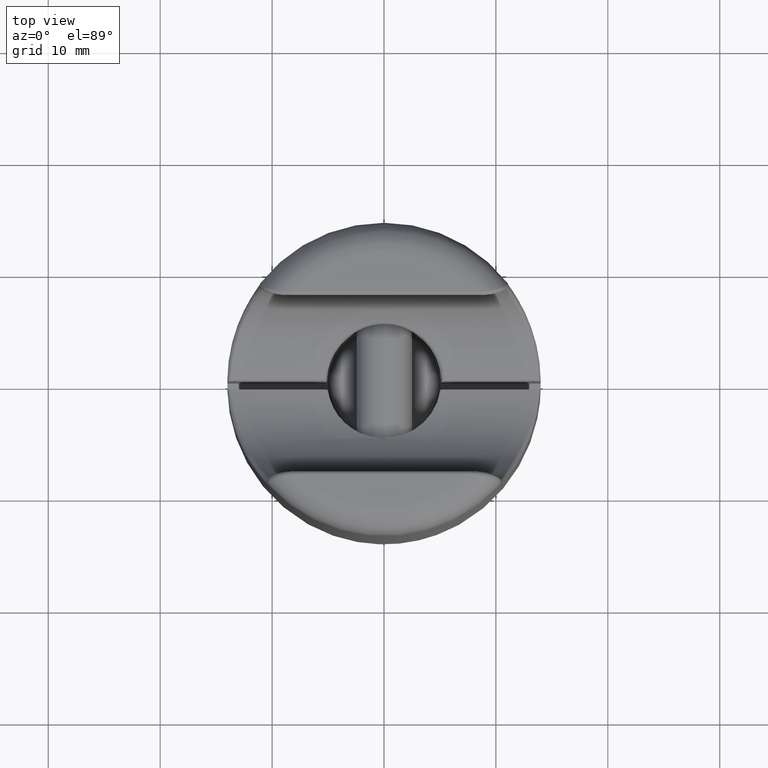
[diagram: clean part render]
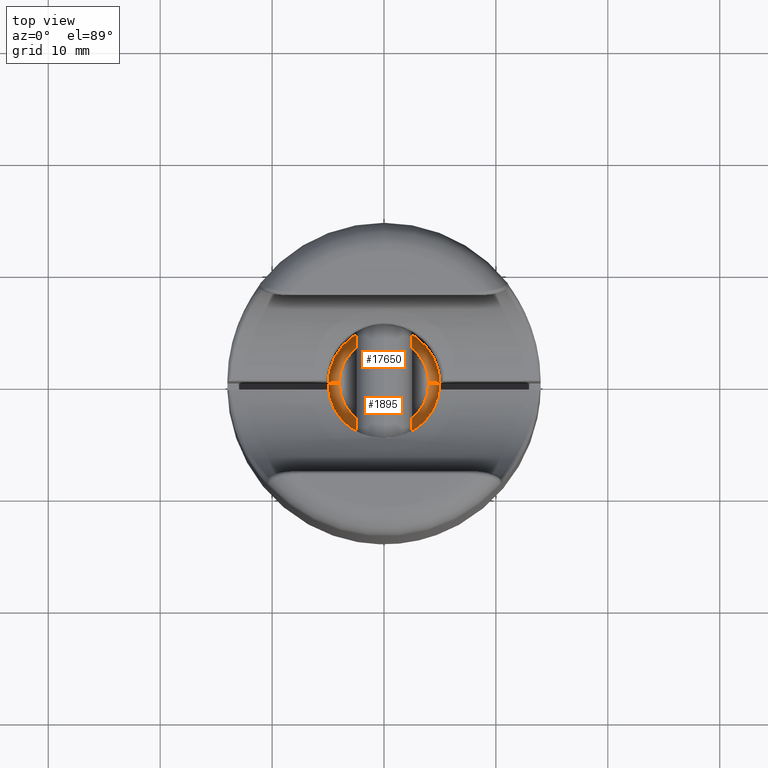
[diagram: same view with one multi-face feature highlighted, each face labeled with its STEP entity id]
A machine part, top view. The highlighted faces form ONE feature: a constant-radius fillet chain: 2 tangent blend faces with common blend radius 1 mm. The faces share edges in the B-rep.
Their STEP definitions:
[1] entity #1895 (Torus):
#184 = CARTESIAN_POINT ( 'NONE',  ( 0.000000000000000000, 6.000000000000001776, 3.999999999999860556 ) ) ;
#629 = VERTEX_POINT ( 'NONE', #184 ) ;
#828 = CARTESIAN_POINT ( 'NONE',  ( 4.898587196589242238E-16, 5.000000000000000888, -3.999999999999860556 ) ) ;
#897 = DIRECTION ( 'NONE',  ( 1.000000000000000000, -0.000000000000000000, 1.224646799147353207E-16 ) ) ;
#901 = CARTESIAN_POINT ( 'NONE',  ( 0.000000000000000000, 5.000000000000000888, -5.000000000000000000 ) ) ;
#1356 = AXIS2_PLACEMENT_3D ( 'NONE', #10643, #2663, #9195 ) ;
#1432 = EDGE_CURVE ( 'NONE', #6773, #629, #13954, .T. ) ;
#1656 = EDGE_LOOP ( 'NONE', ( #9013, #12635, #18982, #18238 ) ) ;
#1895 = ADVANCED_FACE ( 'NONE', ( #7929 ), #3642, .T. ) ;
#2663 = DIRECTION ( 'NONE',  ( 0.000000000000000000, 1.000000000000000000, 0.000000000000000000 ) ) ;
#2698 = DIRECTION ( 'NONE',  ( 0.000000000000000000, 1.000000000000000000, 0.000000000000000000 ) ) ;
#3642 = TOROIDAL_SURFACE ( 'NONE', #1356, 4.000000000000000000, 1.000000000000000000 ) ;
#3749 = VERTEX_POINT ( 'NONE', #10934 ) ;
#4141 = AXIS2_PLACEMENT_3D ( 'NONE', #17110, #16877, #9136 ) ;
#4598 = AXIS2_PLACEMENT_3D ( 'NONE', #20042, #2698, #20187 ) ;
#4790 = CIRCLE ( 'NONE', #4141, 4.999999999999825917 ) ;
#4797 = VERTEX_POINT ( 'NONE', #901 ) ;
#5995 = DIRECTION ( 'NONE',  ( -1.000000000000000000, 0.000000000000000000, 0.000000000000000000 ) ) ;
#6773 = VERTEX_POINT ( 'NONE', #10610 ) ;
#7687 = CARTESIAN_POINT ( 'NONE',  ( 0.000000000000000000, 5.000000000000000888, 3.999999999999860556 ) ) ;
#7929 = FACE_OUTER_BOUND ( 'NONE', #1656, .T. ) ;
#8555 = CIRCLE ( 'NONE', #4598, 3.999999999999860556 ) ;
#8682 = EDGE_CURVE ( 'NONE', #3749, #629, #8555, .T. ) ;
#8747 = DIRECTION ( 'NONE',  ( 1.224646799147353454E-16, 0.000000000000000000, -1.000000000000000000 ) ) ;
#9013 = ORIENTED_EDGE ( 'NONE', *, *, #13057, .F. ) ;
#9136 = DIRECTION ( 'NONE',  ( 0.000000000000000000, 0.000000000000000000, 1.000000000000000000 ) ) ;
#9195 = DIRECTION ( 'NONE',  ( 0.000000000000000000, 0.000000000000000000, 1.000000000000000000 ) ) ;
#10594 = CIRCLE ( 'NONE', #13495, 1.000000000000000000 ) ;
#10610 = CARTESIAN_POINT ( 'NONE',  ( 6.123233995736767268E-16, 5.000000000000000888, 5.000000000000000000 ) ) ;
#10643 = CARTESIAN_POINT ( 'NONE',  ( 0.000000000000000000, 5.000000000000000888, 0.000000000000000000 ) ) ;
#10934 = CARTESIAN_POINT ( 'NONE',  ( 5.510910596163090542E-16, 6.000000000000001776, -4.000000000000000000 ) ) ;
#12635 = ORIENTED_EDGE ( 'NONE', *, *, #15097, .F. ) ;
#13057 = EDGE_CURVE ( 'NONE', #4797, #3749, #10594, .T. ) ;
#13495 = AXIS2_PLACEMENT_3D ( 'NONE', #828, #897, #8747 ) ;
#13954 = CIRCLE ( 'NONE', #16369, 1.000000000000000000 ) ;
#15097 = EDGE_CURVE ( 'NONE', #6773, #4797, #4790, .T. ) ;
#16369 = AXIS2_PLACEMENT_3D ( 'NONE', #7687, #5995, #16983 ) ;
#16877 = DIRECTION ( 'NONE',  ( -0.000000000000000000, -1.000000000000000000, -0.000000000000000000 ) ) ;
#16983 = DIRECTION ( 'NONE',  ( 0.000000000000000000, 0.000000000000000000, 1.000000000000000000 ) ) ;
#17110 = CARTESIAN_POINT ( 'NONE',  ( 0.000000000000000000, 5.000000000000000888, 0.000000000000000000 ) ) ;
#18238 = ORIENTED_EDGE ( 'NONE', *, *, #8682, .F. ) ;
#18982 = ORIENTED_EDGE ( 'NONE', *, *, #1432, .T. ) ;
#20042 = CARTESIAN_POINT ( 'NONE',  ( 0.000000000000000000, 6.000000000000001776, 0.000000000000000000 ) ) ;
#20187 = DIRECTION ( 'NONE',  ( 0.000000000000000000, 0.000000000000000000, 1.000000000000000000 ) ) ;
[2] entity #17650 (Torus):
#184 = CARTESIAN_POINT ( 'NONE',  ( 0.000000000000000000, 6.000000000000001776, 3.999999999999860556 ) ) ;
#484 = CIRCLE ( 'NONE', #5898, 4.999999999999825917 ) ;
#593 = DIRECTION ( 'NONE',  ( 0.000000000000000000, 1.000000000000000000, 0.000000000000000000 ) ) ;
#629 = VERTEX_POINT ( 'NONE', #184 ) ;
#828 = CARTESIAN_POINT ( 'NONE',  ( 4.898587196589242238E-16, 5.000000000000000888, -3.999999999999860556 ) ) ;
#897 = DIRECTION ( 'NONE',  ( 1.000000000000000000, -0.000000000000000000, 1.224646799147353207E-16 ) ) ;
#901 = CARTESIAN_POINT ( 'NONE',  ( 0.000000000000000000, 5.000000000000000888, -5.000000000000000000 ) ) ;
#1432 = EDGE_CURVE ( 'NONE', #6773, #629, #13954, .T. ) ;
#2985 = DIRECTION ( 'NONE',  ( 0.000000000000000000, 1.000000000000000000, 0.000000000000000000 ) ) ;
#3749 = VERTEX_POINT ( 'NONE', #10934 ) ;
#4179 = ORIENTED_EDGE ( 'NONE', *, *, #13057, .T. ) ;
#4797 = VERTEX_POINT ( 'NONE', #901 ) ;
#5898 = AXIS2_PLACEMENT_3D ( 'NONE', #11783, #13456, #13320 ) ;
#5995 = DIRECTION ( 'NONE',  ( -1.000000000000000000, 0.000000000000000000, 0.000000000000000000 ) ) ;
#6773 = VERTEX_POINT ( 'NONE', #10610 ) ;
#7342 = EDGE_CURVE ( 'NONE', #629, #3749, #19093, .T. ) ;
#7687 = CARTESIAN_POINT ( 'NONE',  ( 0.000000000000000000, 5.000000000000000888, 3.999999999999860556 ) ) ;
#8363 = ORIENTED_EDGE ( 'NONE', *, *, #7342, .F. ) ;
#8524 = ORIENTED_EDGE ( 'NONE', *, *, #1432, .F. ) ;
#8747 = DIRECTION ( 'NONE',  ( 1.224646799147353454E-16, 0.000000000000000000, -1.000000000000000000 ) ) ;
#10594 = CIRCLE ( 'NONE', #13495, 1.000000000000000000 ) ;
#10610 = CARTESIAN_POINT ( 'NONE',  ( 6.123233995736767268E-16, 5.000000000000000888, 5.000000000000000000 ) ) ;
#10934 = CARTESIAN_POINT ( 'NONE',  ( 5.510910596163090542E-16, 6.000000000000001776, -4.000000000000000000 ) ) ;
#11783 = CARTESIAN_POINT ( 'NONE',  ( 0.000000000000000000, 5.000000000000000888, 0.000000000000000000 ) ) ;
#11805 = DIRECTION ( 'NONE',  ( 0.000000000000000000, 0.000000000000000000, 1.000000000000000000 ) ) ;
#12256 = ORIENTED_EDGE ( 'NONE', *, *, #18138, .F. ) ;
#12995 = CARTESIAN_POINT ( 'NONE',  ( 0.000000000000000000, 5.000000000000000888, 0.000000000000000000 ) ) ;
#13057 = EDGE_CURVE ( 'NONE', #4797, #3749, #10594, .T. ) ;
#13320 = DIRECTION ( 'NONE',  ( 0.000000000000000000, 0.000000000000000000, 1.000000000000000000 ) ) ;
#13410 = CARTESIAN_POINT ( 'NONE',  ( 0.000000000000000000, 6.000000000000001776, 0.000000000000000000 ) ) ;
#13456 = DIRECTION ( 'NONE',  ( -0.000000000000000000, -1.000000000000000000, -0.000000000000000000 ) ) ;
#13495 = AXIS2_PLACEMENT_3D ( 'NONE', #828, #897, #8747 ) ;
#13954 = CIRCLE ( 'NONE', #16369, 1.000000000000000000 ) ;
#15336 = AXIS2_PLACEMENT_3D ( 'NONE', #13410, #593, #11805 ) ;
#16058 = EDGE_LOOP ( 'NONE', ( #12256, #4179, #8363, #8524 ) ) ;
#16369 = AXIS2_PLACEMENT_3D ( 'NONE', #7687, #5995, #16983 ) ;
#16518 = FACE_OUTER_BOUND ( 'NONE', #16058, .T. ) ;
#16983 = DIRECTION ( 'NONE',  ( 0.000000000000000000, 0.000000000000000000, 1.000000000000000000 ) ) ;
#17267 = TOROIDAL_SURFACE ( 'NONE', #19828, 4.000000000000000000, 1.000000000000000000 ) ;
#17650 = ADVANCED_FACE ( 'NONE', ( #16518 ), #17267, .T. ) ;
#18138 = EDGE_CURVE ( 'NONE', #4797, #6773, #484, .T. ) ;
#18955 = DIRECTION ( 'NONE',  ( 0.000000000000000000, 0.000000000000000000, 1.000000000000000000 ) ) ;
#19093 = CIRCLE ( 'NONE', #15336, 3.999999999999860556 ) ;
#19828 = AXIS2_PLACEMENT_3D ( 'NONE', #12995, #2985, #18955 ) ;